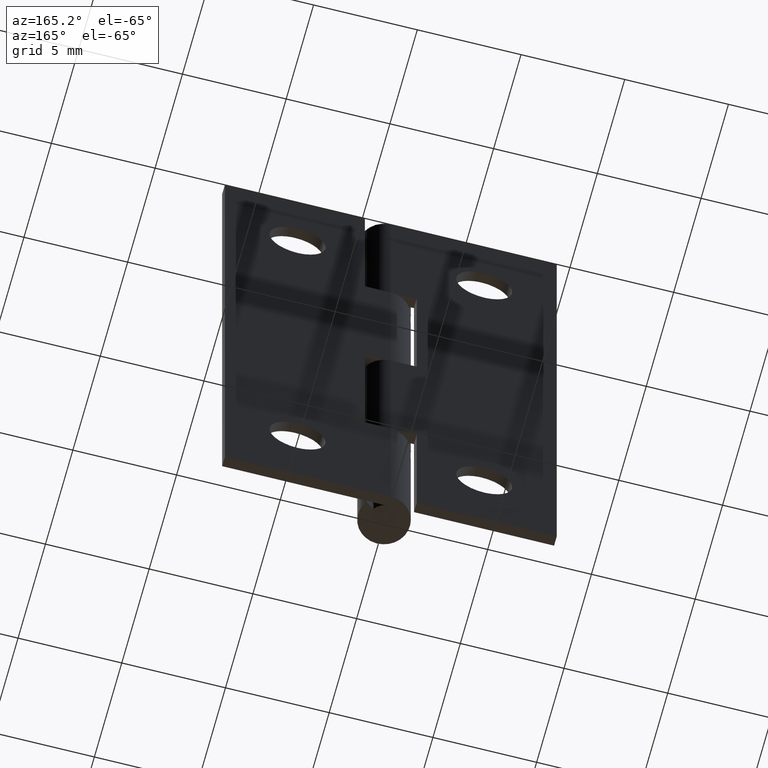
[diagram: clean part render]
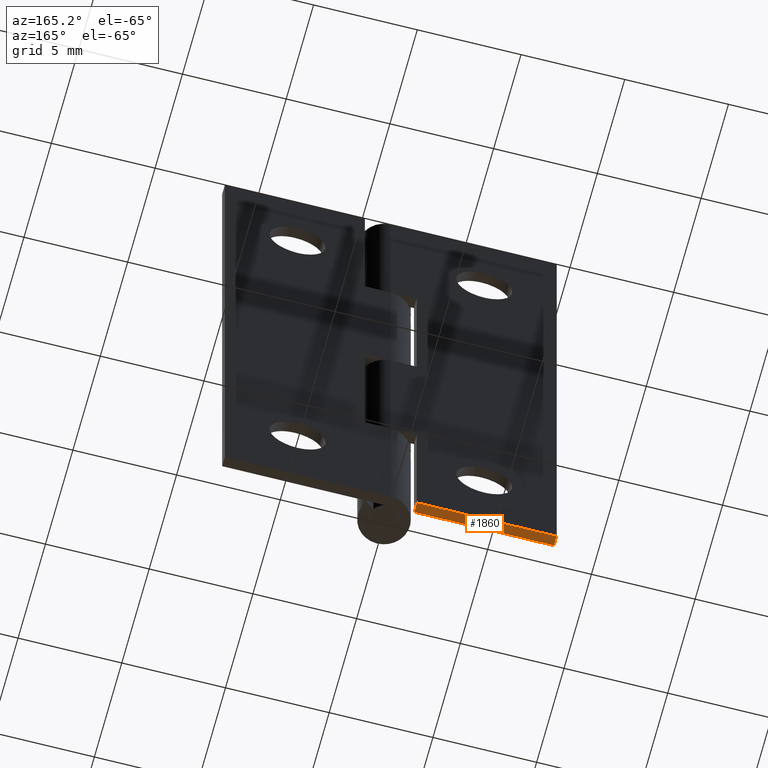
[diagram: same view with one face highlighted and labeled with its STEP entity id]
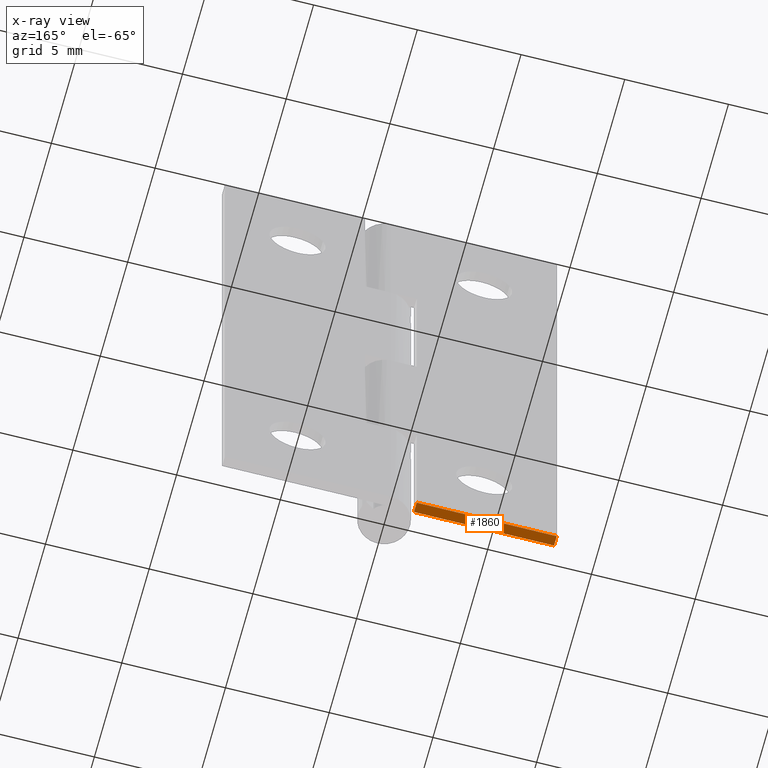
[diagram: x-ray of the same camera — body ghosted, the highlighted face saturated]
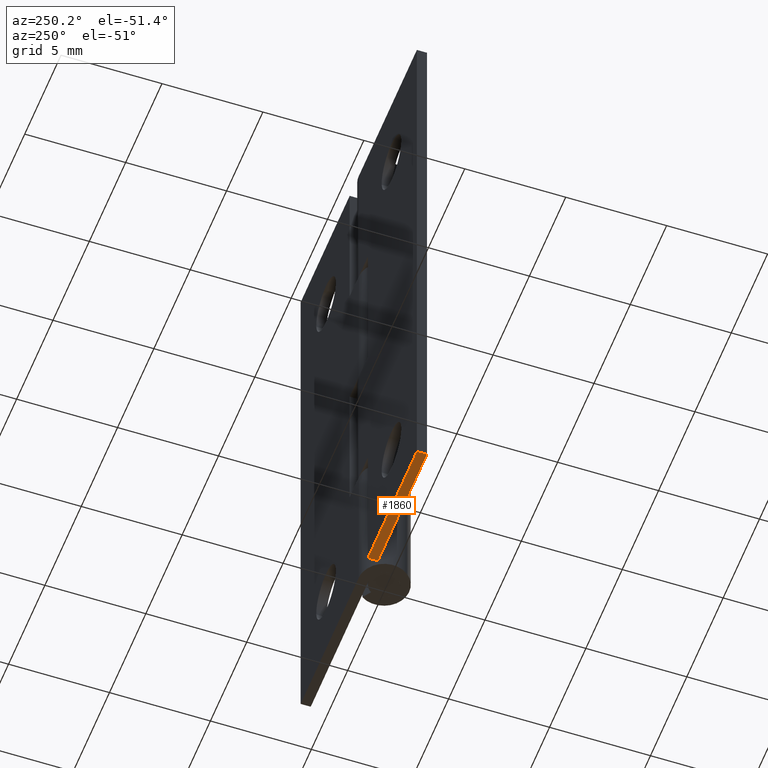
[diagram: same view with one face highlighted and labeled with its STEP entity id]
A machine part, auxiliary view. The second image highlights one B-rep face of the part: STEP entity #1860.
The next image is the same camera in x-ray: the body ghosted, the highlighted face saturated — about 0% of this face is hidden behind the body in this view.
A second angle (auxiliary view) of the same face is appended — the face is thin or edge-on in the first view.
In plain terms, the highlighted face is a freeform B-spline surface patch.
Its self-contained STEP definition (entity closure, byte-faithful):
#1636=CARTESIAN_POINT('',(-1.250000000000000,0.750000000000000,0.0));
#1637=VERTEX_POINT('',#1636);
#1643=CARTESIAN_POINT('',(-1.250000000000000,1.249999999999972,0.0));
#1644=VERTEX_POINT('',#1643);
#1645=CARTESIAN_POINT('',(-1.250000000000000,0.750000000000000,0.0));
#1646=CARTESIAN_POINT('',(-1.250000000000000,1.249999999999972,0.0));
#1647=QUASI_UNIFORM_CURVE('',1,(#1645,#1646),.UNSPECIFIED.,.F.,.U.);
#1648=EDGE_CURVE('',#1637,#1644,#1647,.T.);
#1818=CARTESIAN_POINT('',(-8.0,1.250000000000000,0.0));
#1819=VERTEX_POINT('',#1818);
#1820=CARTESIAN_POINT('',(-8.0,0.750000000000000,0.0));
#1821=VERTEX_POINT('',#1820);
#1822=CARTESIAN_POINT('',(-8.0,1.250000000000000,0.0));
#1823=CARTESIAN_POINT('',(-8.0,0.750000000000000,0.0));
#1824=QUASI_UNIFORM_CURVE('',1,(#1822,#1823),.UNSPECIFIED.,.F.,.U.);
#1825=EDGE_CURVE('',#1819,#1821,#1824,.T.);
#1841=CARTESIAN_POINT('',(-8.337162486917190,1.274974999030903,0.0));
#1842=CARTESIAN_POINT('',(-0.912837332033701,1.274974999030903,0.0));
#1843=CARTESIAN_POINT('',(-8.337162486917190,0.725024987558052,0.0));
#1844=CARTESIAN_POINT('',(-0.912837332033701,0.725024987558052,0.0));
#1845=B_SPLINE_SURFACE_WITH_KNOTS('',1,1,((#1841,#1843),(#1842,#1844)),.UNSPECIFIED.,.F.,.F.,.U.,(2,2),(2,2),(0.0,7.424325154883489),(0.041708334948495,0.958291687403247),.UNSPECIFIED.);
#1846=ORIENTED_EDGE('',*,*,#1648,.F.);
#1847=CARTESIAN_POINT('',(-8.0,0.750000000000000,0.0));
#1848=CARTESIAN_POINT('',(-1.250000000000000,0.750000000000000,0.0));
#1849=QUASI_UNIFORM_CURVE('',1,(#1847,#1848),.UNSPECIFIED.,.F.,.U.);
#1850=EDGE_CURVE('',#1821,#1637,#1849,.T.);
#1851=ORIENTED_EDGE('',*,*,#1850,.F.);
#1852=ORIENTED_EDGE('',*,*,#1825,.F.);
#1853=CARTESIAN_POINT('',(-1.250000000000000,1.249999999999972,0.0));
#1854=CARTESIAN_POINT('',(-8.0,1.250000000000000,0.0));
#1855=QUASI_UNIFORM_CURVE('',1,(#1853,#1854),.UNSPECIFIED.,.F.,.U.);
#1856=EDGE_CURVE('',#1644,#1819,#1855,.T.);
#1857=ORIENTED_EDGE('',*,*,#1856,.F.);
#1858=EDGE_LOOP('',(#1846,#1851,#1852,#1857));
#1859=FACE_OUTER_BOUND('',#1858,.T.);
#1860=ADVANCED_FACE('',(#1859),#1845,.T.);